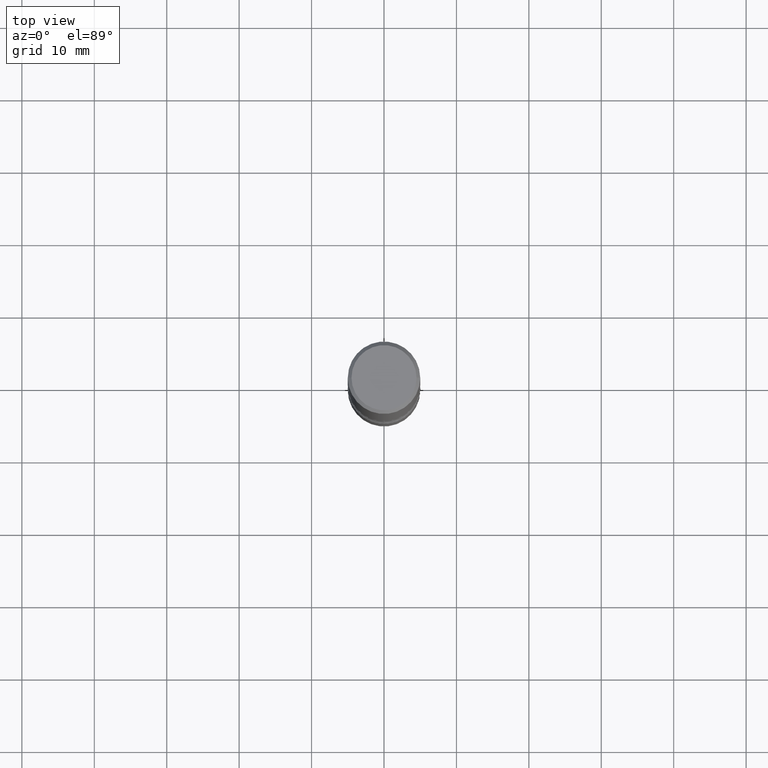
[diagram: clean part render]
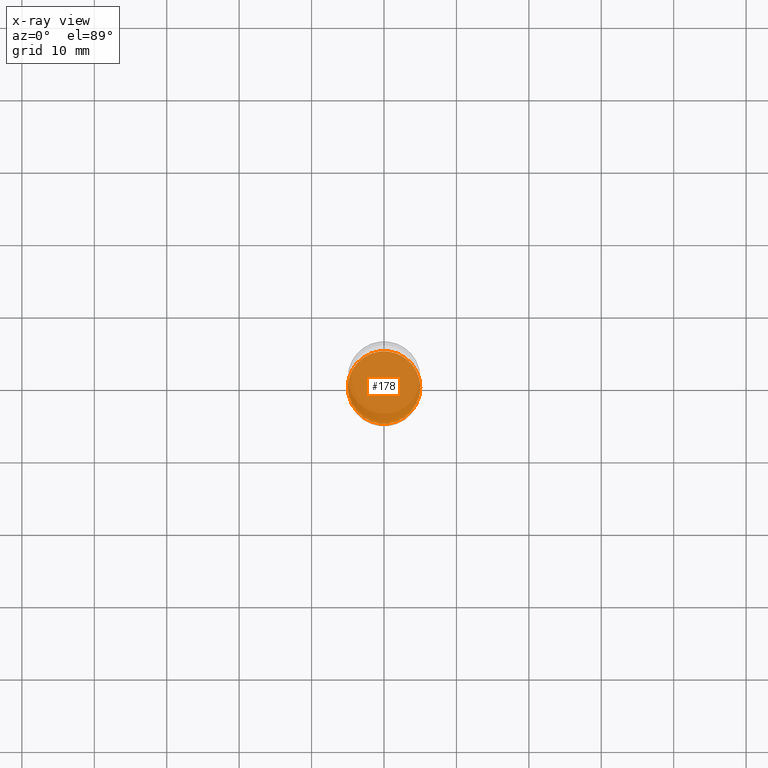
[diagram: x-ray — body ghosted, one internal face saturated and labeled with its STEP entity id]
A machine part, top view, then the same camera in x-ray: the body is ghosted and one INTERNAL B-rep face — a face not visible from any outside direction — is saturated and labeled: STEP entity #178.
In plain terms, the highlighted planar face has unit normal (0, -0, -1).
Its self-contained STEP definition (entity closure, byte-faithful):
#58 = DIRECTION ( 'NONE',  ( -1.000000000000000000, 6.982962677686265922E-15, -4.876176775795935793E-29 ) ) ;
#63 = DIRECTION ( 'NONE',  ( 2.438088387897960049E-29, -3.491481338843145188E-15, -1.000000000000000000 ) ) ;
#69 = VERTEX_POINT ( 'NONE', #515 ) ;
#79 = DIRECTION ( 'NONE',  ( -2.445468806185136597E-29, 3.491481338843145583E-15, 1.000000000000000000 ) ) ;
#104 = AXIS2_PLACEMENT_3D ( 'NONE', #339, #79, #517 ) ;
#130 = VERTEX_POINT ( 'NONE', #523 ) ;
#144 = CIRCLE ( 'NONE', #104, 0.1968500000000001915 ) ;
#148 = DIRECTION ( 'NONE',  ( -2.445468806185136597E-29, 3.491481338843145583E-15, 1.000000000000000000 ) ) ;
#169 = CARTESIAN_POINT ( 'NONE',  ( 7.509790156913936305E-29, -1.072199004345341739E-14, -3.070900000000000407 ) ) ;
#178 = ADVANCED_FACE ( 'NONE', ( #520 ), #306, .F. ) ;
#185 = DIRECTION ( 'NONE',  ( 1.000000000000000000, -6.982962677686272233E-15, 0.000000000000000000 ) ) ;
#194 = AXIS2_PLACEMENT_3D ( 'NONE', #169, #148, #185 ) ;
#257 = ORIENTED_EDGE ( 'NONE', *, *, #389, .T. ) ;
#270 = CARTESIAN_POINT ( 'NONE',  ( 7.509790156913936305E-29, -1.072199004345341739E-14, -3.070900000000000407 ) ) ;
#306 = PLANE ( 'NONE',  #518 ) ;
#339 = CARTESIAN_POINT ( 'NONE',  ( 7.509790156913936305E-29, -1.072199004345341739E-14, -3.070900000000000407 ) ) ;
#361 = ORIENTED_EDGE ( 'NONE', *, *, #452, .T. ) ;
#387 = EDGE_LOOP ( 'NONE', ( #257, #361 ) ) ;
#389 = EDGE_CURVE ( 'NONE', #130, #69, #144, .T. ) ;
#442 = CIRCLE ( 'NONE', #194, 0.1968500000000001915 ) ;
#452 = EDGE_CURVE ( 'NONE', #69, #130, #442, .T. ) ;
#515 = CARTESIAN_POINT ( 'NONE',  ( -0.1968500000000001915, -1.080088157070807781E-14, -3.070900000000000407 ) ) ;
#517 = DIRECTION ( 'NONE',  ( 1.000000000000000000, -6.982962677686272233E-15, 0.000000000000000000 ) ) ;
#518 = AXIS2_PLACEMENT_3D ( 'NONE', #270, #63, #58 ) ;
#520 = FACE_OUTER_BOUND ( 'NONE', #387, .T. ) ;
#523 = CARTESIAN_POINT ( 'NONE',  ( 0.1968500000000001915, -1.209658624655596058E-14, -3.070900000000000407 ) ) ;